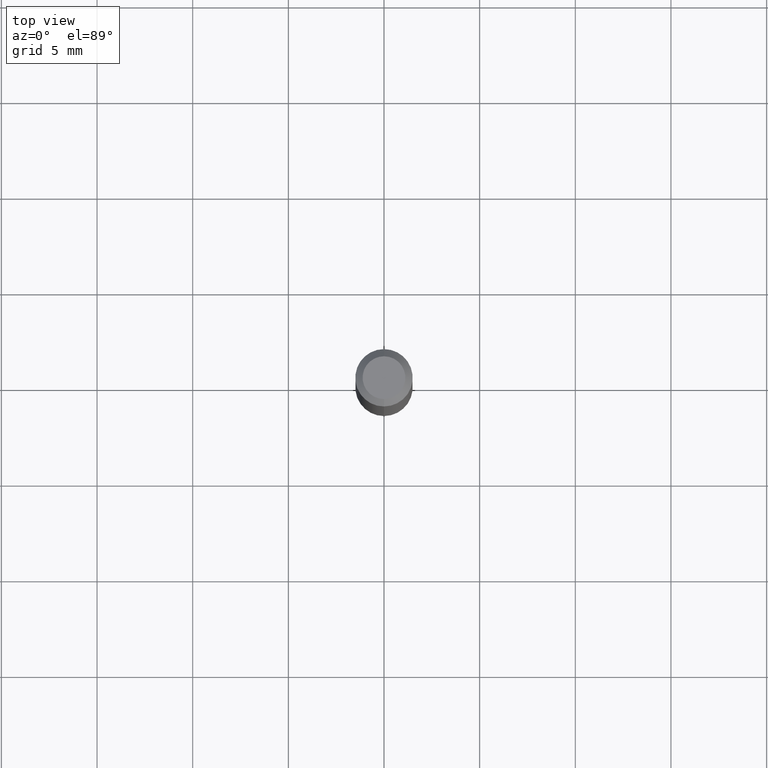
[diagram: clean part render]
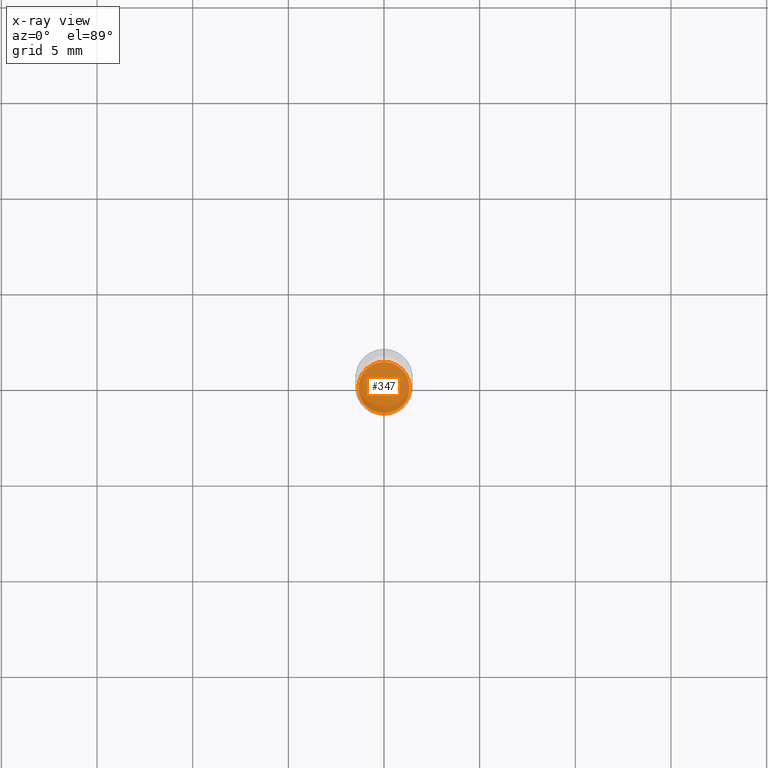
[diagram: x-ray — body ghosted, one internal face saturated and labeled with its STEP entity id]
A machine part, top view, then the same camera in x-ray: the body is ghosted and one INTERNAL B-rep face — a face not visible from any outside direction — is saturated and labeled: STEP entity #347.
In plain terms, the highlighted planar face has unit normal (-0, 0, 1).
Its self-contained STEP definition (entity closure, byte-faithful):
#28 = AXIS2_PLACEMENT_3D ( 'NONE', #400, #199, #476 ) ;
#67 = DIRECTION ( 'NONE',  ( -6.982962677686265922E-15, -1.000000000000000000, 2.594347572330734199E-15 ) ) ;
#96 = CARTESIAN_POINT ( 'NONE',  ( 2.878855302902169312E-29, -4.110101053731306636E-15, -1.177200000000000024 ) ) ;
#106 = FACE_OUTER_BOUND ( 'NONE', #484, .T. ) ;
#115 = AXIS2_PLACEMENT_3D ( 'NONE', #96, #393, #67 ) ;
#151 = CARTESIAN_POINT ( 'NONE',  ( -3.676529849801530716E-16, -0.05265000000000411018, -1.177199999999999802 ) ) ;
#154 = ORIENTED_EDGE ( 'NONE', *, *, #402, .F. ) ;
#189 = CARTESIAN_POINT ( 'NONE',  ( 2.878855302902169312E-29, -4.110101053731306636E-15, -1.177200000000000024 ) ) ;
#199 = DIRECTION ( 'NONE',  ( -2.445510790776562624E-29, 3.491421214518609091E-15, 1.000000000000000000 ) ) ;
#200 = EDGE_CURVE ( 'NONE', #512, #364, #415, .T. ) ;
#229 = CIRCLE ( 'NONE', #115, 0.05265000000000000235 ) ;
#311 = AXIS2_PLACEMENT_3D ( 'NONE', #189, #425, #502 ) ;
#344 = PLANE ( 'NONE',  #311 ) ;
#347 = ADVANCED_FACE ( 'NONE', ( #106 ), #344, .F. ) ;
#364 = VERTEX_POINT ( 'NONE', #426 ) ;
#393 = DIRECTION ( 'NONE',  ( -2.445510790776562624E-29, 3.491421214518609091E-15, 1.000000000000000000 ) ) ;
#400 = CARTESIAN_POINT ( 'NONE',  ( 2.878855302902169312E-29, -4.110101053731306636E-15, -1.177200000000000024 ) ) ;
#402 = EDGE_CURVE ( 'NONE', #364, #512, #229, .T. ) ;
#410 = ORIENTED_EDGE ( 'NONE', *, *, #200, .F. ) ;
#415 = CIRCLE ( 'NONE', #28, 0.05265000000000000235 ) ;
#425 = DIRECTION ( 'NONE',  ( -2.445510790776562344E-29, 3.491421214518609091E-15, 1.000000000000000000 ) ) ;
#426 = CARTESIAN_POINT ( 'NONE',  ( 3.758771072171219580E-16, 0.05264999999999589453, -1.177200000000000024 ) ) ;
#476 = DIRECTION ( 'NONE',  ( -6.982962677686265922E-15, -1.000000000000000000, 2.594347572330734199E-15 ) ) ;
#484 = EDGE_LOOP ( 'NONE', ( #410, #154 ) ) ;
#502 = DIRECTION ( 'NONE',  ( -6.982962677686265922E-15, -1.000000000000000000, 3.491421214518609091E-15 ) ) ;
#512 = VERTEX_POINT ( 'NONE', #151 ) ;